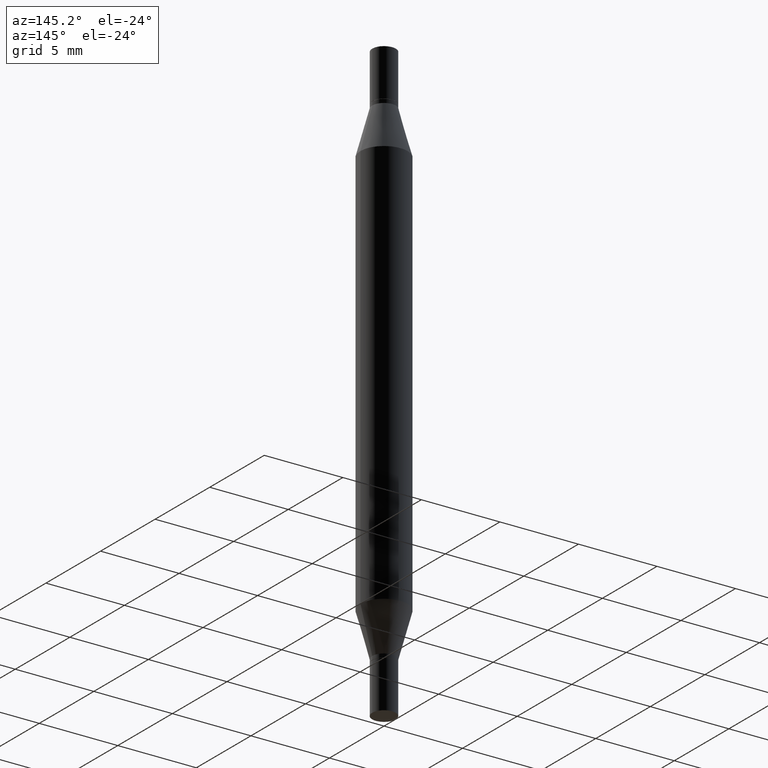
[diagram: clean part render]
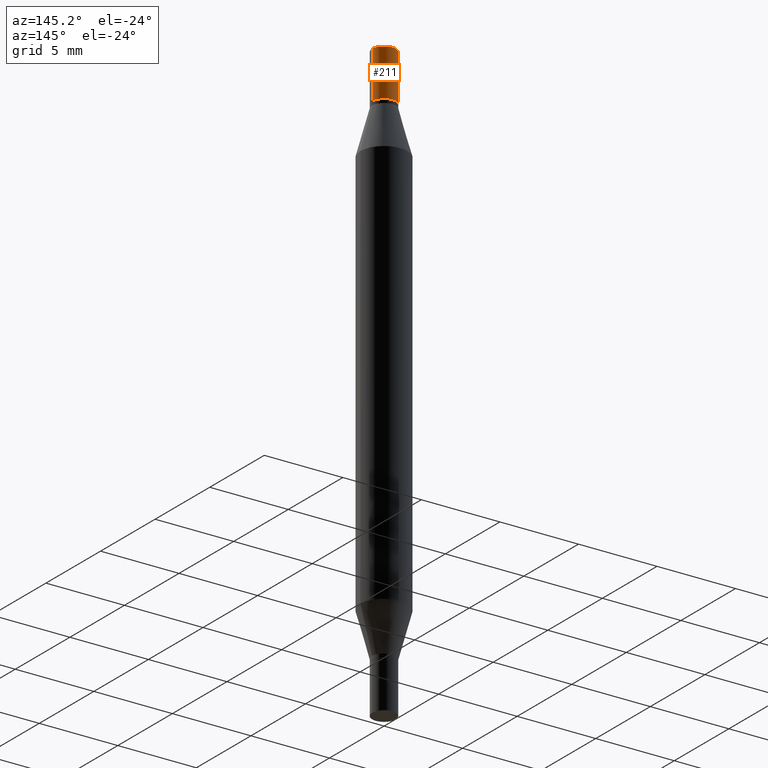
[diagram: same view with one face highlighted and labeled with its STEP entity id]
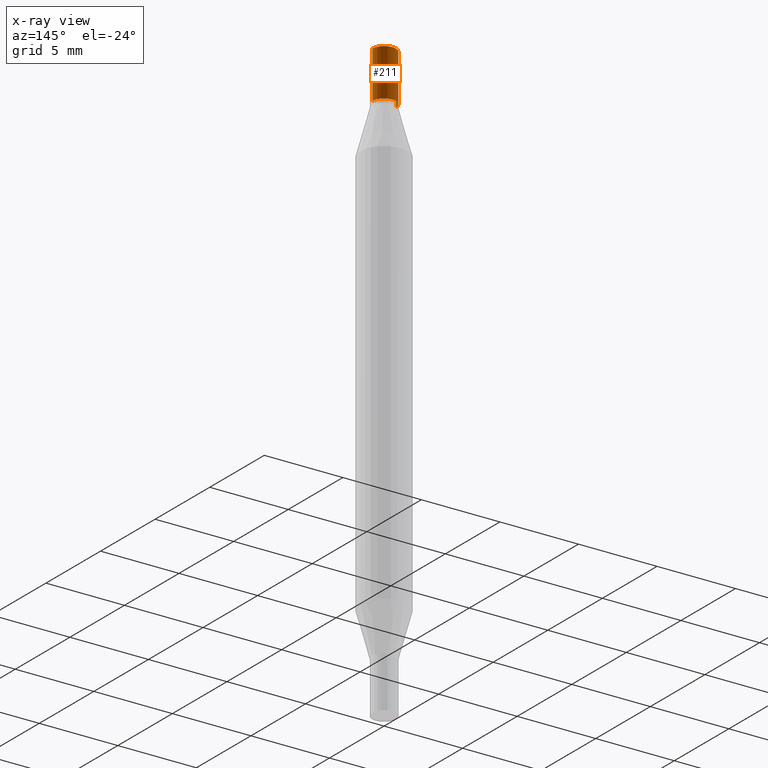
[diagram: x-ray of the same camera — body ghosted, the highlighted face saturated]
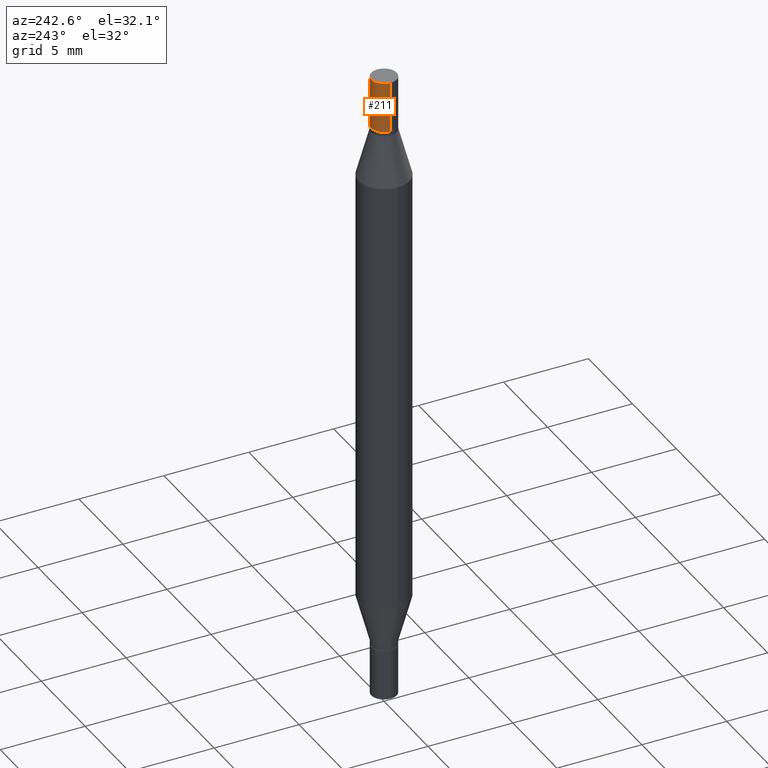
[diagram: same view with one face highlighted and labeled with its STEP entity id]
A machine part, auxiliary view. The second image highlights one B-rep face of the part: STEP entity #211.
The next image is the same camera in x-ray: the body ghosted, the highlighted face saturated — about 0% of this face is hidden behind the body in this view.
A second angle (auxiliary view) of the same face is appended — the face is thin or edge-on in the first view.
In plain terms, the highlighted cylindrical surface (edge-blend (fillet) strip) has radius 0.7506 mm, axis along (-0, -0, -1).
Its self-contained STEP definition (entity closure, byte-faithful):
#5 = EDGE_CURVE ( 'NONE', #273, #442, #785, .T. ) ;
#28 = CIRCLE ( 'NONE', #486, 0.02954999999999999988 ) ;
#61 = DIRECTION ( 'NONE',  ( 2.445468806185136597E-29, 3.491805094961124077E-15, 1.000000000000000000 ) ) ;
#96 = EDGE_CURVE ( 'NONE', #373, #351, #28, .T. ) ;
#150 = LINE ( 'NONE', #441, #650 ) ;
#173 = CYLINDRICAL_SURFACE ( 'NONE', #405, 0.02954999999999999988 ) ;
#189 = DIRECTION ( 'NONE',  ( -2.445468806185136877E-29, -3.491805094961123683E-15, -1.000000000000000000 ) ) ;
#211 = ADVANCED_FACE ( 'NONE', ( #538 ), #173, .T. ) ;
#225 = CARTESIAN_POINT ( 'NONE',  ( 3.658665880933582389E-29, 2.421857640538043390E-19, 0.000000000000000000 ) ) ;
#273 = VERTEX_POINT ( 'NONE', #320 ) ;
#280 = EDGE_CURVE ( 'NONE', #351, #442, #550, .T. ) ;
#306 = CARTESIAN_POINT ( 'NONE',  ( 0.000000000000000000, -5.223847416807283040E-15, -1.496099999999999985 ) ) ;
#320 = CARTESIAN_POINT ( 'NONE',  ( 0.02954999999999999988, -6.184865430764830320E-16, -0.1181000000000000383 ) ) ;
#351 = VERTEX_POINT ( 'NONE', #926 ) ;
#355 = DIRECTION ( 'NONE',  ( 1.000000000000000000, -6.982962677686266711E-15, 2.260776888683160832E-33 ) ) ;
#356 = ORIENTED_EDGE ( 'NONE', *, *, #96, .F. ) ;
#358 = AXIS2_PLACEMENT_3D ( 'NONE', #738, #744, #875 ) ;
#372 = VECTOR ( 'NONE', #189, 39.37007874015748143 ) ;
#373 = VERTEX_POINT ( 'NONE', #713 ) ;
#378 = ORIENTED_EDGE ( 'NONE', *, *, #775, .T. ) ;
#383 = DIRECTION ( 'NONE',  ( 1.000000000000000000, -6.982962677686261977E-15, 0.000000000000000000 ) ) ;
#405 = AXIS2_PLACEMENT_3D ( 'NONE', #306, #449, #383 ) ;
#441 = CARTESIAN_POINT ( 'NONE',  ( 0.02954999999999999988, -5.430193963932912651E-15, -1.496099999999999985 ) ) ;
#442 = VERTEX_POINT ( 'NONE', #728 ) ;
#449 = DIRECTION ( 'NONE',  ( -2.445468806185136597E-29, -3.491805094961124077E-15, -1.000000000000000000 ) ) ;
#458 = DIRECTION ( 'NONE',  ( -2.445468806185136877E-29, -3.491805094961123683E-15, -1.000000000000000000 ) ) ;
#486 = AXIS2_PLACEMENT_3D ( 'NONE', #225, #61, #355 ) ;
#506 = EDGE_LOOP ( 'NONE', ( #718, #356, #378, #740 ) ) ;
#538 = FACE_OUTER_BOUND ( 'NONE', #506, .T. ) ;
#550 = LINE ( 'NONE', #694, #372 ) ;
#650 = VECTOR ( 'NONE', #458, 39.37007874015748143 ) ;
#694 = CARTESIAN_POINT ( 'NONE',  ( -0.02954999999999999988, -5.021119700973134755E-15, -1.496099999999999985 ) ) ;
#713 = CARTESIAN_POINT ( 'NONE',  ( 0.02954999999999999988, -2.061043613615753919E-16, 6.680595706058740339E-35 ) ) ;
#718 = ORIENTED_EDGE ( 'NONE', *, *, #280, .F. ) ;
#728 = CARTESIAN_POINT ( 'NONE',  ( -0.02954999999999999988, -3.221189259251762717E-18, -0.1181000000000000383 ) ) ;
#738 = CARTESIAN_POINT ( 'NONE',  ( 3.369856014923117948E-29, -4.121399959508538653E-16, -0.1181000000000000383 ) ) ;
#740 = ORIENTED_EDGE ( 'NONE', *, *, #5, .T. ) ;
#744 = DIRECTION ( 'NONE',  ( 2.445468806185136597E-29, 3.491805094961124077E-15, 1.000000000000000000 ) ) ;
#775 = EDGE_CURVE ( 'NONE', #373, #273, #150, .T. ) ;
#785 = CIRCLE ( 'NONE', #358, 0.02954999999999999988 ) ;
#875 = DIRECTION ( 'NONE',  ( 1.000000000000000000, -6.982962677686265922E-15, 0.000000000000000000 ) ) ;
#926 = CARTESIAN_POINT ( 'NONE',  ( -0.02954999999999999988, -3.221189259251762717E-18, 7.347294627798473966E-31 ) ) ;